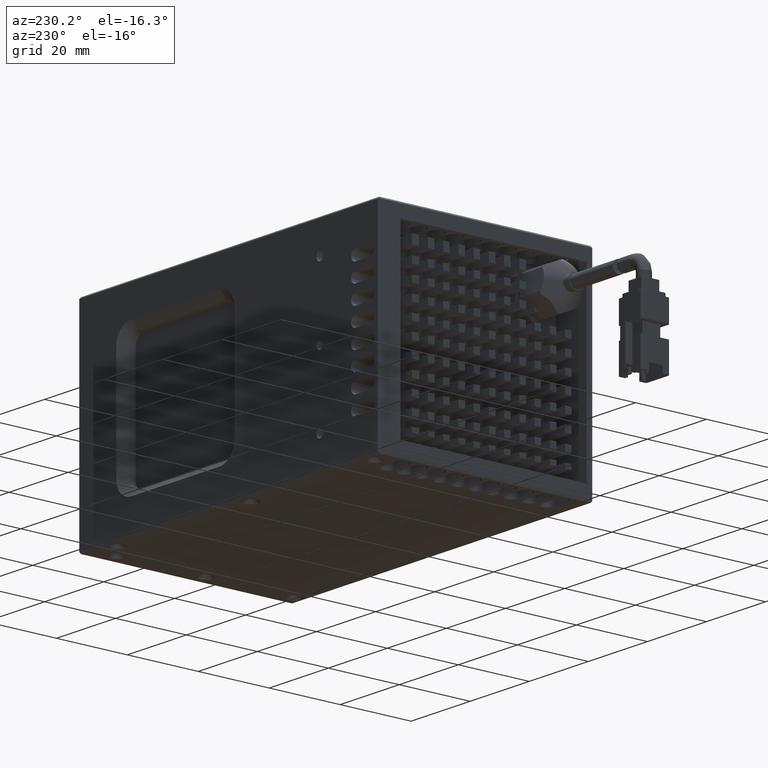
[diagram: clean part render]
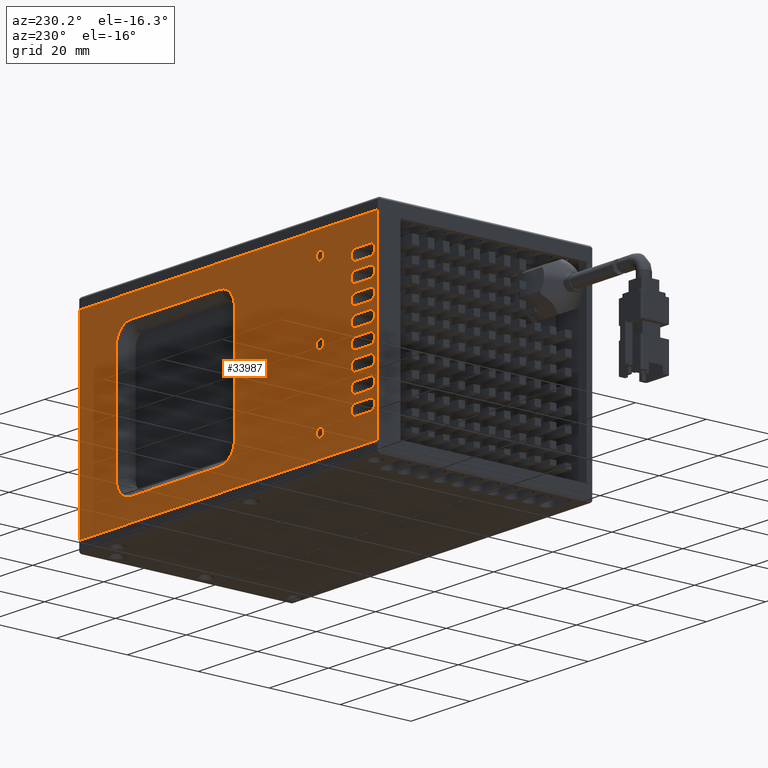
[diagram: same view with one face highlighted and labeled with its STEP entity id]
A machine part, auxiliary view. The second image highlights one B-rep face of the part: STEP entity #33987.
In plain terms, the highlighted planar face has unit normal (-0, 1, -0).
Its self-contained STEP definition (entity closure, byte-faithful):
#105 = CARTESIAN_POINT ( 'NONE',  ( -60.57424922391149400, 52.77699333090260600, 28.00000000000952500 ) ) ;
#243 = FACE_BOUND ( 'NONE', #42780, .T. ) ;
#595 = AXIS2_PLACEMENT_3D ( 'NONE', #66644, #34923, #3165 ) ;
#991 = CARTESIAN_POINT ( 'NONE',  ( 33.42575077608848500, 52.77699333090263400, 33.00000000000955700 ) ) ;
#1183 = VECTOR ( 'NONE', #54573, 1000.000000000000000 ) ;
#1205 = CIRCLE ( 'NONE', #60375, 1.250000000000001100 ) ;
#1409 = EDGE_LOOP ( 'NONE', ( #49536, #67572, #17032, #20960 ) ) ;
#1542 = CARTESIAN_POINT ( 'NONE',  ( 33.42575077608847800, 52.77699333090263400, 55.00000000000956400 ) ) ;
#1860 = AXIS2_PLACEMENT_3D ( 'NONE', #20312, #57369, #25615 ) ;
#1905 = ORIENTED_EDGE ( 'NONE', *, *, #30020, .T. ) ;
#2249 = VERTEX_POINT ( 'NONE', #2453 ) ;
#2427 = EDGE_CURVE ( 'NONE', #13977, #49899, #11357, .T. ) ;
#2453 = CARTESIAN_POINT ( 'NONE',  ( -59.07424922391148000, 52.77699333090260600, 31.50000000000952100 ) ) ;
#2514 = DIRECTION ( 'NONE',  ( 3.435095992033281500E-016, -1.000000000000000000, 2.465190328815661900E-032 ) ) ;
#2870 = DIRECTION ( 'NONE',  ( 1.000000000000000000, 0.0000000000000000000, 0.0000000000000000000 ) ) ;
#3034 = CARTESIAN_POINT ( 'NONE',  ( -65.57424922391150800, 52.77699333090259900, 23.00000000000952100 ) ) ;
#3047 = ORIENTED_EDGE ( 'NONE', *, *, #67195, .T. ) ;
#3165 = DIRECTION ( 'NONE',  ( 1.000000000000000000, 0.0000000000000000000, 0.0000000000000000000 ) ) ;
#3201 = DIRECTION ( 'NONE',  ( 1.000000000000000000, 0.0000000000000000000, 0.0000000000000000000 ) ) ;
#3255 = DIRECTION ( 'NONE',  ( 1.000000000000000000, 0.0000000000000000000, 0.0000000000000000000 ) ) ;
#3263 = ORIENTED_EDGE ( 'NONE', *, *, #35941, .T. ) ;
#3293 = DIRECTION ( 'NONE',  ( 3.435095992033281500E-016, -1.000000000000000000, 2.465190328815661900E-032 ) ) ;
#3581 = DIRECTION ( 'NONE',  ( 3.435095992033281500E-016, -1.000000000000000000, 2.465190328815661900E-032 ) ) ;
#3697 = CARTESIAN_POINT ( 'NONE',  ( -65.57424922391150800, 52.77699333090259900, 10.00000000000950900 ) ) ;
#3776 = ORIENTED_EDGE ( 'NONE', *, *, #59220, .T. ) ;
#3928 = VECTOR ( 'NONE', #47336, 1000.000000000000000 ) ;
#3972 = CARTESIAN_POINT ( 'NONE',  ( -60.57424922391149400, 52.77699333090260600, 18.00000000000952100 ) ) ;
#4051 = ORIENTED_EDGE ( 'NONE', *, *, #39392, .T. ) ;
#4683 = CARTESIAN_POINT ( 'NONE',  ( -49.82424922391150100, 52.77699333090260600, 49.00000000000952800 ) ) ;
#4720 = CARTESIAN_POINT ( 'NONE',  ( 20.42575077610281300, 52.77699333091695200, 14.00000000000957500 ) ) ;
#4824 = DIRECTION ( 'NONE',  ( 1.000000000000000000, 0.0000000000000000000, 0.0000000000000000000 ) ) ;
#5147 = DIRECTION ( 'NONE',  ( 1.000000000000000000, 3.435095992033281500E-016, 3.435095992033281500E-016 ) ) ;
#5177 = CIRCLE ( 'NONE', #50483, 1.500000000000015100 ) ;
#5285 = DIRECTION ( 'NONE',  ( 1.000000000000000000, 0.0000000000000000000, 0.0000000000000000000 ) ) ;
#5357 = CARTESIAN_POINT ( 'NONE',  ( -59.07424922391148000, 52.77699333090260600, 11.50000000000950900 ) ) ;
#5515 = EDGE_CURVE ( 'NONE', #17069, #45733, #49355, .T. ) ;
#5654 = EDGE_CURVE ( 'NONE', #29653, #53619, #1205, .T. ) ;
#5808 = LINE ( 'NONE', #31713, #33956 ) ;
#6179 = EDGE_CURVE ( 'NONE', #62976, #61128, #35846, .T. ) ;
#6235 = CARTESIAN_POINT ( 'NONE',  ( -48.57424922391150100, 52.77699333090260600, 29.00000000000952500 ) ) ;
#6411 = EDGE_LOOP ( 'NONE', ( #62473, #64328, #49758, #58919, #57609, #45622, #13969, #6834 ) ) ;
#6658 = DIRECTION ( 'NONE',  ( 3.435095992033281500E-016, -1.000000000000000000, 2.465190328815661900E-032 ) ) ;
#6680 = EDGE_CURVE ( 'NONE', #14652, #22328, #40804, .T. ) ;
#6834 = ORIENTED_EDGE ( 'NONE', *, *, #41227, .T. ) ;
#6887 = VERTEX_POINT ( 'NONE', #5357 ) ;
#7090 = CARTESIAN_POINT ( 'NONE',  ( -65.57424922391150800, 52.77699333090259900, 25.00000000000950000 ) ) ;
#7111 = VERTEX_POINT ( 'NONE', #34470 ) ;
#7150 = EDGE_CURVE ( 'NONE', #51911, #13977, #33152, .T. ) ;
#7195 = DIRECTION ( 'NONE',  ( 3.435095992033281500E-016, -1.000000000000000000, 2.465190328815661900E-032 ) ) ;
#7206 = ORIENTED_EDGE ( 'NONE', *, *, #39862, .T. ) ;
#7431 = EDGE_CURVE ( 'NONE', #25349, #41941, #66149, .T. ) ;
#7501 = CIRCLE ( 'NONE', #26940, 1.500000000000015100 ) ;
#7579 = EDGE_CURVE ( 'NONE', #46853, #26463, #24670, .T. ) ;
#7589 = CARTESIAN_POINT ( 'NONE',  ( -65.57424922391152200, 52.77699333090259900, 43.00000000000951400 ) ) ;
#7680 = VECTOR ( 'NONE', #28025, 1000.000000000000000 ) ;
#7751 = VECTOR ( 'NONE', #24280, 1000.000000000000000 ) ;
#7929 = CARTESIAN_POINT ( 'NONE',  ( 33.42575077608849200, 52.77699333090263400, 3.000000000009543500 ) ) ;
#8077 = CARTESIAN_POINT ( 'NONE',  ( 20.42575077608849900, 52.77699333090263400, 3.000000000009536800 ) ) ;
#8279 = AXIS2_PLACEMENT_3D ( 'NONE', #11241, #48339, #16544 ) ;
#8302 = DIRECTION ( 'NONE',  ( -3.435095992033281500E-016, -9.334694145667452600E-032, 1.000000000000000000 ) ) ;
#8683 = CARTESIAN_POINT ( 'NONE',  ( -60.57424922391150800, 52.77699333090260600, 46.50000000000952100 ) ) ;
#8742 = VERTEX_POINT ( 'NONE', #62972 ) ;
#8788 = CARTESIAN_POINT ( 'NONE',  ( -14.57424922391150400, 52.77699333093126900, 14.00000000000956000 ) ) ;
#8958 = VECTOR ( 'NONE', #8302, 1000.000000000000000 ) ;
#9000 = EDGE_LOOP ( 'NONE', ( #67646, #3776 ) ) ;
#9222 = CIRCLE ( 'NONE', #41988, 1.500000000000015100 ) ;
#9428 = CARTESIAN_POINT ( 'NONE',  ( -65.57424922391152200, 52.77699333090259900, 41.50000000000951400 ) ) ;
#9696 = EDGE_CURVE ( 'NONE', #39662, #51377, #35770, .T. ) ;
#9927 = CARTESIAN_POINT ( 'NONE',  ( 33.42575077608848500, 52.77699333090263400, 35.00000000000954300 ) ) ;
#10131 = CIRCLE ( 'NONE', #13921, 5.000000000023187700 ) ;
#10308 = LINE ( 'NONE', #37932, #11977 ) ;
#10588 = VERTEX_POINT ( 'NONE', #58787 ) ;
#10721 = DIRECTION ( 'NONE',  ( -1.000000000000000000, -3.435095992033281500E-016, -3.435095992033281500E-016 ) ) ;
#10747 = EDGE_CURVE ( 'NONE', #39049, #36580, #53901, .T. ) ;
#10754 = CARTESIAN_POINT ( 'NONE',  ( -60.57424922391149400, 52.77699333090260600, 33.00000000000952100 ) ) ;
#10757 = LINE ( 'NONE', #9927, #65481 ) ;
#10778 = VERTEX_POINT ( 'NONE', #28401 ) ;
#10855 = CARTESIAN_POINT ( 'NONE',  ( -60.57424922391150800, 52.77699333090260600, 36.50000000000952100 ) ) ;
#10974 = VERTEX_POINT ( 'NONE', #57085 ) ;
#10993 = FACE_BOUND ( 'NONE', #15210, .T. ) ;
#11054 = VERTEX_POINT ( 'NONE', #31107 ) ;
#11118 = CARTESIAN_POINT ( 'NONE',  ( -60.57424922391149400, 52.77699333090260600, 30.00000000000950400 ) ) ;
#11140 = LINE ( 'NONE', #991, #65833 ) ;
#11241 = CARTESIAN_POINT ( 'NONE',  ( -60.57424922391149400, 52.77699333090260600, 26.50000000000951400 ) ) ;
#11318 = DIRECTION ( 'NONE',  ( 3.435095992033281500E-016, -1.000000000000000000, 2.465190328815661900E-032 ) ) ;
#11357 = LINE ( 'NONE', #35369, #66063 ) ;
#11492 = DIRECTION ( 'NONE',  ( 1.000000000000000000, 0.0000000000000000000, 0.0000000000000000000 ) ) ;
#11912 = VECTOR ( 'NONE', #19668, 1000.000000000000000 ) ;
#11977 = VECTOR ( 'NONE', #53885, 1000.000000000000000 ) ;
#12348 = AXIS2_PLACEMENT_3D ( 'NONE', #8683, #45764, #13989 ) ;
#12356 = VERTEX_POINT ( 'NONE', #34469 ) ;
#12369 = VECTOR ( 'NONE', #55182, 1000.000000000000000 ) ;
#12430 = CARTESIAN_POINT ( 'NONE',  ( 33.42575077608849200, 52.77699333090263400, 3.000000000009543500 ) ) ;
#12525 = VERTEX_POINT ( 'NONE', #52031 ) ;
#12645 = VERTEX_POINT ( 'NONE', #105 ) ;
#12670 = FACE_OUTER_BOUND ( 'NONE', #1409, .T. ) ;
#12703 = CARTESIAN_POINT ( 'NONE',  ( -65.57424922391152200, 52.77699333090259900, 38.00000000000952800 ) ) ;
#12954 = CARTESIAN_POINT ( 'NONE',  ( -65.57424922391152200, 52.77699333090259900, 35.00000000000950700 ) ) ;
#13077 = ORIENTED_EDGE ( 'NONE', *, *, #59780, .T. ) ;
#13226 = DIRECTION ( 'NONE',  ( 1.000000000000000000, 3.435095992033281500E-016, 3.435095992033281500E-016 ) ) ;
#13597 = CARTESIAN_POINT ( 'NONE',  ( -14.57424922391150400, 52.77699333091693700, 8.999999999995219800 ) ) ;
#13626 = CARTESIAN_POINT ( 'NONE',  ( -65.57424922391150800, 52.77699333090259900, 33.00000000000952100 ) ) ;
#13786 = AXIS2_PLACEMENT_3D ( 'NONE', #45646, #13855, #50897 ) ;
#13855 = DIRECTION ( 'NONE',  ( 3.435095992033281500E-016, -1.000000000000000000, 2.465190328815661900E-032 ) ) ;
#13921 = AXIS2_PLACEMENT_3D ( 'NONE', #35341, #3581, #40683 ) ;
#13969 = ORIENTED_EDGE ( 'NONE', *, *, #43156, .T. ) ;
#13977 = VERTEX_POINT ( 'NONE', #7090 ) ;
#13989 = DIRECTION ( 'NONE',  ( 1.000000000000000000, 0.0000000000000000000, 0.0000000000000000000 ) ) ;
#14028 = CARTESIAN_POINT ( 'NONE',  ( -60.57424922391149400, 52.77699333090260600, 31.50000000000952100 ) ) ;
#14032 = CIRCLE ( 'NONE', #8279, 1.500000000000015100 ) ;
#14097 = DIRECTION ( 'NONE',  ( 1.000000000000000000, 0.0000000000000000000, 1.387778780783214500E-015 ) ) ;
#14105 = ORIENTED_EDGE ( 'NONE', *, *, #25617, .T. ) ;
#14293 = EDGE_CURVE ( 'NONE', #51377, #21510, #10757, .T. ) ;
#14335 = FACE_BOUND ( 'NONE', #24935, .T. ) ;
#14417 = VERTEX_POINT ( 'NONE', #27758 ) ;
#14643 = VERTEX_POINT ( 'NONE', #13597 ) ;
#14652 = VERTEX_POINT ( 'NONE', #50650 ) ;
#14732 = DIRECTION ( 'NONE',  ( 1.000000000000000000, 0.0000000000000000000, 0.0000000000000000000 ) ) ;
#15210 = EDGE_LOOP ( 'NONE', ( #57290, #68465 ) ) ;
#15226 = LINE ( 'NONE', #35579, #29322 ) ;
#15307 = AXIS2_PLACEMENT_3D ( 'NONE', #20076, #57134, #25402 ) ;
#15399 = CARTESIAN_POINT ( 'NONE',  ( -19.57424922386819000, 52.77699333088146700, 14.00000000000955300 ) ) ;
#15513 = AXIS2_PLACEMENT_3D ( 'NONE', #56259, #24513, #61616 ) ;
#15639 = AXIS2_PLACEMENT_3D ( 'NONE', #66741, #35028, #3255 ) ;
#15879 = CARTESIAN_POINT ( 'NONE',  ( -59.07424922391149400, 52.77699333090260600, 36.50000000000952100 ) ) ;
#15960 = CARTESIAN_POINT ( 'NONE',  ( -60.57424922391149400, 52.77699333090260600, 15.00000000000949800 ) ) ;
#16101 = ORIENTED_EDGE ( 'NONE', *, *, #60577, .T. ) ;
#16175 = DIRECTION ( 'NONE',  ( 1.000000000000000000, 0.0000000000000000000, 0.0000000000000000000 ) ) ;
#16451 = VERTEX_POINT ( 'NONE', #15879 ) ;
#16544 = DIRECTION ( 'NONE',  ( 1.000000000000000000, 0.0000000000000000000, 0.0000000000000000000 ) ) ;
#16779 = ORIENTED_EDGE ( 'NONE', *, *, #46502, .T. ) ;
#16785 = DIRECTION ( 'NONE',  ( 3.435095992033281500E-016, -1.000000000000000000, 2.465190328815661900E-032 ) ) ;
#16791 = CARTESIAN_POINT ( 'NONE',  ( -48.57424922391148700, 52.77699333090260600, 9.000000000009528400 ) ) ;
#16972 = DIRECTION ( 'NONE',  ( -1.000000000000000000, -3.435095992033281500E-016, -3.435095992033281500E-016 ) ) ;
#17032 = ORIENTED_EDGE ( 'NONE', *, *, #10747, .T. ) ;
#17069 = VERTEX_POINT ( 'NONE', #50213 ) ;
#17087 = CARTESIAN_POINT ( 'NONE',  ( -65.57424922391150800, 52.77699333090259900, 20.00000000000950400 ) ) ;
#17450 = DIRECTION ( 'NONE',  ( 3.435095992033281500E-016, -1.000000000000000000, 2.465190328815661900E-032 ) ) ;
#17483 = EDGE_CURVE ( 'NONE', #26463, #17069, #43342, .T. ) ;
#17884 = CIRCLE ( 'NONE', #1860, 5.000000000023187700 ) ;
#17997 = EDGE_CURVE ( 'NONE', #33615, #40882, #58861, .T. ) ;
#18037 = CARTESIAN_POINT ( 'NONE',  ( 33.42575077608849200, 52.77699333090263400, 9.000000000009556800 ) ) ;
#18039 = VERTEX_POINT ( 'NONE', #60985 ) ;
#18841 = CIRCLE ( 'NONE', #15307, 1.500000000000015100 ) ;
#19306 = VECTOR ( 'NONE', #10721, 1000.000000000000000 ) ;
#19332 = DIRECTION ( 'NONE',  ( 1.000000000000000000, 0.0000000000000000000, 0.0000000000000000000 ) ) ;
#19473 = EDGE_CURVE ( 'NONE', #16451, #42437, #9222, .T. ) ;
#19668 = DIRECTION ( 'NONE',  ( 1.000000000000000000, 3.435095992033281500E-016, 3.435095992033281500E-016 ) ) ;
#19967 = CARTESIAN_POINT ( 'NONE',  ( -68.07424922391149400, 52.77699333090260600, 3.000000000009515900 ) ) ;
#19981 = CARTESIAN_POINT ( 'NONE',  ( -60.57424922391150800, 52.77699333090260600, 45.00000000000950700 ) ) ;
#20076 = CARTESIAN_POINT ( 'NONE',  ( -60.57424922391150800, 52.77699333090260600, 41.50000000000951400 ) ) ;
#20194 = EDGE_CURVE ( 'NONE', #49899, #30148, #14032, .T. ) ;
#20204 = EDGE_CURVE ( 'NONE', #8742, #27727, #67061, .T. ) ;
#20312 = CARTESIAN_POINT ( 'NONE',  ( 15.42575077608848000, 52.77699333093127600, 44.00000000000955000 ) ) ;
#20631 = VERTEX_POINT ( 'NONE', #4720 ) ;
#20706 = EDGE_CURVE ( 'NONE', #23767, #10588, #46233, .T. ) ;
#20726 = AXIS2_PLACEMENT_3D ( 'NONE', #58140, #26386, #63470 ) ;
#20960 = ORIENTED_EDGE ( 'NONE', *, *, #64266, .T. ) ;
#20962 = LINE ( 'NONE', #21162, #19306 ) ;
#21108 = ORIENTED_EDGE ( 'NONE', *, *, #20706, .T. ) ;
#21162 = CARTESIAN_POINT ( 'NONE',  ( 33.42575077608847800, 52.77699333090263400, 48.00000000000955700 ) ) ;
#21247 = VERTEX_POINT ( 'NONE', #35910 ) ;
#21469 = AXIS2_PLACEMENT_3D ( 'NONE', #55031, #23308, #60367 ) ;
#21510 = VERTEX_POINT ( 'NONE', #54386 ) ;
#21833 = LINE ( 'NONE', #56018, #7751 ) ;
#21857 = VERTEX_POINT ( 'NONE', #15399 ) ;
#21889 = CARTESIAN_POINT ( 'NONE',  ( -60.57424922391150800, 52.77699333090260600, 41.50000000000951400 ) ) ;
#22074 = DIRECTION ( 'NONE',  ( -1.000000000000000000, -3.435095992033281500E-016, -3.435095992033281500E-016 ) ) ;
#22139 = DIRECTION ( 'NONE',  ( 1.000000000000000000, 0.0000000000000000000, 0.0000000000000000000 ) ) ;
#22223 = ORIENTED_EDGE ( 'NONE', *, *, #6680, .T. ) ;
#22241 = CIRCLE ( 'NONE', #41868, 1.500000000000015100 ) ;
#22328 = VERTEX_POINT ( 'NONE', #37630 ) ;
#22335 = DIRECTION ( 'NONE',  ( 3.435095992033281500E-016, -1.000000000000000000, 2.465190328815661900E-032 ) ) ;
#22507 = ORIENTED_EDGE ( 'NONE', *, *, #2427, .T. ) ;
#22511 = CARTESIAN_POINT ( 'NONE',  ( -65.57424922391152200, 52.77699333090259900, 40.00000000000950000 ) ) ;
#23057 = AXIS2_PLACEMENT_3D ( 'NONE', #21889, #58938, #27175 ) ;
#23082 = ORIENTED_EDGE ( 'NONE', *, *, #6179, .T. ) ;
#23176 = AXIS2_PLACEMENT_3D ( 'NONE', #68236, #36541, #4824 ) ;
#23237 = ORIENTED_EDGE ( 'NONE', *, *, #5515, .T. ) ;
#23259 = CARTESIAN_POINT ( 'NONE',  ( 33.42575077608848500, 52.77699333090263400, 20.00000000000953900 ) ) ;
#23275 = EDGE_CURVE ( 'NONE', #65362, #62092, #43498, .T. ) ;
#23308 = DIRECTION ( 'NONE',  ( 3.435095992033281500E-016, -1.000000000000000000, 2.465190328815661900E-032 ) ) ;
#23317 = EDGE_CURVE ( 'NONE', #40882, #14417, #50880, .T. ) ;
#23381 = DIRECTION ( 'NONE',  ( 1.000000000000000000, 3.435095992033281500E-016, 3.435095992033281500E-016 ) ) ;
#23643 = PLANE ( 'NONE',  #43860 ) ;
#23767 = VERTEX_POINT ( 'NONE', #48990 ) ;
#23930 = CIRCLE ( 'NONE', #37901, 1.250000000000001100 ) ;
#24280 = DIRECTION ( 'NONE',  ( -1.000000000000000000, -3.435095992033281500E-016, -3.435095992033281500E-016 ) ) ;
#24288 = EDGE_LOOP ( 'NONE', ( #41418, #22223 ) ) ;
#24385 = ORIENTED_EDGE ( 'NONE', *, *, #66728, .T. ) ;
#24420 = CARTESIAN_POINT ( 'NONE',  ( -65.57424922391152200, 52.77699333090259900, 45.00000000000950700 ) ) ;
#24513 = DIRECTION ( 'NONE',  ( 3.435095992033281500E-016, -1.000000000000000000, 2.465190328815661900E-032 ) ) ;
#24532 = CARTESIAN_POINT ( 'NONE',  ( 33.42575077608849200, 52.77699333090263400, 10.00000000000954300 ) ) ;
#24670 = LINE ( 'NONE', #23259, #61996 ) ;
#24693 = CARTESIAN_POINT ( 'NONE',  ( 33.42575077608849200, 52.77699333090263400, 18.00000000000955700 ) ) ;
#24811 = VERTEX_POINT ( 'NONE', #43793 ) ;
#24888 = AXIS2_PLACEMENT_3D ( 'NONE', #38354, #6658, #43705 ) ;
#24935 = EDGE_LOOP ( 'NONE', ( #38329, #40800, #60754, #41538, #64616 ) ) ;
#25021 = ORIENTED_EDGE ( 'NONE', *, *, #39099, .T. ) ;
#25091 = FACE_BOUND ( 'NONE', #24288, .T. ) ;
#25268 = CARTESIAN_POINT ( 'NONE',  ( -14.57424922391151900, 52.77699333092410000, 49.00000000000238000 ) ) ;
#25349 = VERTEX_POINT ( 'NONE', #53850 ) ;
#25402 = DIRECTION ( 'NONE',  ( 1.000000000000000000, 0.0000000000000000000, 0.0000000000000000000 ) ) ;
#25478 = AXIS2_PLACEMENT_3D ( 'NONE', #43099, #11318, #48428 ) ;
#25609 = AXIS2_PLACEMENT_3D ( 'NONE', #35055, #3293, #40384 ) ;
#25615 = DIRECTION ( 'NONE',  ( 1.000000000000000000, 0.0000000000000000000, 2.775557561550019500E-015 ) ) ;
#25617 = EDGE_CURVE ( 'NONE', #12525, #63759, #32922, .T. ) ;
#25644 = CARTESIAN_POINT ( 'NONE',  ( -68.07424922391148000, 52.77699333090262000, 55.00000000000955000 ) ) ;
#26386 = DIRECTION ( 'NONE',  ( 3.435095992033281500E-016, -1.000000000000000000, 2.465190328815661900E-032 ) ) ;
#26463 = VERTEX_POINT ( 'NONE', #59074 ) ;
#26542 = ORIENTED_EDGE ( 'NONE', *, *, #7431, .T. ) ;
#26693 = CARTESIAN_POINT ( 'NONE',  ( -60.57424922391150800, 52.77699333090260600, 36.50000000000952100 ) ) ;
#26699 = EDGE_CURVE ( 'NONE', #30148, #12645, #39239, .T. ) ;
#26751 = FACE_BOUND ( 'NONE', #53905, .T. ) ;
#26811 = ORIENTED_EDGE ( 'NONE', *, *, #20194, .T. ) ;
#26940 = AXIS2_PLACEMENT_3D ( 'NONE', #54058, #22335, #59414 ) ;
#27175 = DIRECTION ( 'NONE',  ( 1.000000000000000000, 0.0000000000000000000, 0.0000000000000000000 ) ) ;
#27727 = VERTEX_POINT ( 'NONE', #7589 ) ;
#27758 = CARTESIAN_POINT ( 'NONE',  ( -19.57424922392584700, 52.77699333091693700, 44.00000000000952800 ) ) ;
#27839 = EDGE_CURVE ( 'NONE', #62092, #39049, #15226, .T. ) ;
#28025 = DIRECTION ( 'NONE',  ( 1.000000000000000000, 3.435095992033281500E-016, 3.435095992033281500E-016 ) ) ;
#28229 = CARTESIAN_POINT ( 'NONE',  ( -48.57424922391150100, 52.77699333090260600, 29.00000000000952500 ) ) ;
#28401 = CARTESIAN_POINT ( 'NONE',  ( 15.42575077608849400, 52.77699333088148100, 9.000000000013768500 ) ) ;
#28411 = FACE_BOUND ( 'NONE', #33633, .T. ) ;
#28724 = CIRCLE ( 'NONE', #25478, 1.250000000000001100 ) ;
#28978 = DIRECTION ( 'NONE',  ( 3.435095992033281500E-016, -1.000000000000000000, 2.465190328815661900E-032 ) ) ;
#29322 = VECTOR ( 'NONE', #67293, 1000.000000000000000 ) ;
#29428 = CARTESIAN_POINT ( 'NONE',  ( -60.57424922391149400, 52.77699333090260600, 21.50000000000951100 ) ) ;
#29580 = CARTESIAN_POINT ( 'NONE',  ( 32.92575077608848500, 52.77699333090264100, 55.00000000000955700 ) ) ;
#29653 = VERTEX_POINT ( 'NONE', #47384 ) ;
#29806 = DIRECTION ( 'NONE',  ( -1.000000000000000000, -3.435095992033281500E-016, -3.435095992033281500E-016 ) ) ;
#30020 = EDGE_CURVE ( 'NONE', #60201, #7111, #68257, .T. ) ;
#30148 = VERTEX_POINT ( 'NONE', #52145 ) ;
#30675 = CARTESIAN_POINT ( 'NONE',  ( -65.57424922391152200, 52.77699333090259900, 48.00000000000952100 ) ) ;
#31107 = CARTESIAN_POINT ( 'NONE',  ( -47.32424922391148700, 52.77699333090260600, 9.000000000009528400 ) ) ;
#31113 = ORIENTED_EDGE ( 'NONE', *, *, #60705, .T. ) ;
#31174 = AXIS2_PLACEMENT_3D ( 'NONE', #14028, #51073, #19332 ) ;
#31409 = VECTOR ( 'NONE', #5147, 1000.000000000000000 ) ;
#31708 = CARTESIAN_POINT ( 'NONE',  ( 33.42575077608848500, 52.77699333090263400, 30.00000000000953900 ) ) ;
#31713 = CARTESIAN_POINT ( 'NONE',  ( 33.42575077608848500, 52.77699333090263400, 23.00000000000955300 ) ) ;
#32003 = DIRECTION ( 'NONE',  ( 1.000000000000000000, 0.0000000000000000000, 0.0000000000000000000 ) ) ;
#32312 = VECTOR ( 'NONE', #22074, 1000.000000000000000 ) ;
#32692 = VERTEX_POINT ( 'NONE', #3697 ) ;
#32922 = CIRCLE ( 'NONE', #12348, 1.500000000000015100 ) ;
#33152 = CIRCLE ( 'NONE', #595, 1.500000000000015100 ) ;
#33451 = CARTESIAN_POINT ( 'NONE',  ( 32.92575077608850600, 52.77699333090263400, 3.000000000009543500 ) ) ;
#33579 = DIRECTION ( 'NONE',  ( 1.000000000000000000, 0.0000000000000000000, 0.0000000000000000000 ) ) ;
#33615 = VERTEX_POINT ( 'NONE', #66309 ) ;
#33633 = EDGE_LOOP ( 'NONE', ( #47378, #14105, #63288, #64508, #23082 ) ) ;
#33805 = ORIENTED_EDGE ( 'NONE', *, *, #62550, .T. ) ;
#33938 = CIRCLE ( 'NONE', #39206, 1.500000000000015100 ) ;
#33956 = VECTOR ( 'NONE', #37098, 1000.000000000000000 ) ;
#33987 = ADVANCED_FACE ( 'NONE', ( #28411, #40895, #14335, #54941, #243, #26751, #12670, #67371, #53299, #39205, #25091, #10993, #65701 ), #23643, .T. ) ;
#34194 = CARTESIAN_POINT ( 'NONE',  ( -65.57424922391150800, 52.77699333090259900, 15.00000000000950500 ) ) ;
#34287 = CARTESIAN_POINT ( 'NONE',  ( -48.57424922391148700, 52.77699333090260600, 9.000000000009528400 ) ) ;
#34469 = CARTESIAN_POINT ( 'NONE',  ( 20.42575077610279900, 52.77699333091695200, 44.00000000000956400 ) ) ;
#34470 = CARTESIAN_POINT ( 'NONE',  ( -59.07424922391148000, 52.77699333090260600, 16.50000000000951400 ) ) ;
#34509 = ORIENTED_EDGE ( 'NONE', *, *, #38383, .T. ) ;
#34629 = DIRECTION ( 'NONE',  ( 3.435095992033281500E-016, -1.000000000000000000, 2.465190328815661900E-032 ) ) ;
#34680 = CIRCLE ( 'NONE', #48969, 4.999999999993627300 ) ;
#34793 = DIRECTION ( 'NONE',  ( 1.000000000000000000, 0.0000000000000000000, 0.0000000000000000000 ) ) ;
#34923 = DIRECTION ( 'NONE',  ( 3.435095992033281500E-016, -1.000000000000000000, 2.465190328815661900E-032 ) ) ;
#34968 = DIRECTION ( 'NONE',  ( 3.435095992033281500E-016, -1.000000000000000000, 2.465190328815661900E-032 ) ) ;
#35028 = DIRECTION ( 'NONE',  ( 3.435095992033281500E-016, -1.000000000000000000, 2.465190328815661900E-032 ) ) ;
#35055 = CARTESIAN_POINT ( 'NONE',  ( -60.57424922391149400, 52.77699333090260600, 16.50000000000951400 ) ) ;
#35341 = CARTESIAN_POINT ( 'NONE',  ( 15.42575077608849000, 52.77699333093127600, 14.00000000000957500 ) ) ;
#35369 = CARTESIAN_POINT ( 'NONE',  ( 33.42575077608848500, 52.77699333090263400, 25.00000000000953500 ) ) ;
#35571 = AXIS2_PLACEMENT_3D ( 'NONE', #28229, #65288, #33579 ) ;
#35579 = CARTESIAN_POINT ( 'NONE',  ( 32.92575077608850600, 52.77699333090263400, 3.000000000009543500 ) ) ;
#35770 = CIRCLE ( 'NONE', #15513, 1.500000000000015100 ) ;
#35846 = LINE ( 'NONE', #43612, #7680 ) ;
#35910 = CARTESIAN_POINT ( 'NONE',  ( -49.82424922391148700, 52.77699333090260600, 9.000000000009528400 ) ) ;
#35941 = EDGE_CURVE ( 'NONE', #37809, #25349, #38062, .T. ) ;
#36195 = VERTEX_POINT ( 'NONE', #10754 ) ;
#36541 = DIRECTION ( 'NONE',  ( 3.435095992033281500E-016, -1.000000000000000000, 2.465190328815661900E-032 ) ) ;
#36580 = VERTEX_POINT ( 'NONE', #19967 ) ;
#36824 = DIRECTION ( 'NONE',  ( 1.000000000000000000, 3.435095992033281500E-016, 3.435095992033281500E-016 ) ) ;
#36983 = DIRECTION ( 'NONE',  ( 3.435095992033281500E-016, -1.000000000000000000, 2.465190328815661900E-032 ) ) ;
#37032 = AXIS2_PLACEMENT_3D ( 'NONE', #48566, #16785, #53838 ) ;
#37098 = DIRECTION ( 'NONE',  ( -1.000000000000000000, -3.435095992033281500E-016, -3.435095992033281500E-016 ) ) ;
#37144 = EDGE_CURVE ( 'NONE', #48514, #2249, #38468, .T. ) ;
#37341 = EDGE_CURVE ( 'NONE', #63759, #60652, #20962, .T. ) ;
#37630 = CARTESIAN_POINT ( 'NONE',  ( -47.32424922391150100, 52.77699333090260600, 29.00000000000952500 ) ) ;
#37681 = DIRECTION ( 'NONE',  ( -1.000000000000000000, -3.435095992033281500E-016, -3.435095992033281500E-016 ) ) ;
#37809 = VERTEX_POINT ( 'NONE', #3972 ) ;
#37901 = AXIS2_PLACEMENT_3D ( 'NONE', #34287, #2514, #39609 ) ;
#37932 = CARTESIAN_POINT ( 'NONE',  ( -68.07424922391146500, 52.77699333090259900, 3.000000000009508800 ) ) ;
#38062 = LINE ( 'NONE', #24693, #66218 ) ;
#38267 = EDGE_CURVE ( 'NONE', #42437, #39662, #21833, .T. ) ;
#38269 = VERTEX_POINT ( 'NONE', #13626 ) ;
#38329 = ORIENTED_EDGE ( 'NONE', *, *, #63199, .T. ) ;
#38354 = CARTESIAN_POINT ( 'NONE',  ( -60.57424922391149400, 52.77699333090260600, 21.50000000000951100 ) ) ;
#38383 = EDGE_CURVE ( 'NONE', #12645, #51911, #56562, .T. ) ;
#38468 = CIRCLE ( 'NONE', #31174, 1.500000000000015100 ) ;
#38536 = VERTEX_POINT ( 'NONE', #59235 ) ;
#38781 = CARTESIAN_POINT ( 'NONE',  ( -60.57424922391149400, 52.77699333090260600, 23.00000000000952100 ) ) ;
#38881 = CARTESIAN_POINT ( 'NONE',  ( -60.57424922391149400, 52.77699333090260600, 11.50000000000950900 ) ) ;
#38882 = VECTOR ( 'NONE', #37681, 1000.000000000000000 ) ;
#38990 = EDGE_CURVE ( 'NONE', #60652, #62976, #7501, .T. ) ;
#39049 = VERTEX_POINT ( 'NONE', #33451 ) ;
#39099 = EDGE_CURVE ( 'NONE', #46297, #24811, #68737, .T. ) ;
#39177 = ORIENTED_EDGE ( 'NONE', *, *, #43089, .T. ) ;
#39205 = FACE_BOUND ( 'NONE', #56575, .T. ) ;
#39206 = AXIS2_PLACEMENT_3D ( 'NONE', #26693, #63768, #32003 ) ;
#39239 = CIRCLE ( 'NONE', #13786, 1.500000000000015100 ) ;
#39392 = EDGE_CURVE ( 'NONE', #45733, #44179, #5808, .T. ) ;
#39505 = ORIENTED_EDGE ( 'NONE', *, *, #65962, .T. ) ;
#39609 = DIRECTION ( 'NONE',  ( 1.000000000000000000, 0.0000000000000000000, 0.0000000000000000000 ) ) ;
#39662 = VERTEX_POINT ( 'NONE', #12703 ) ;
#39862 = EDGE_CURVE ( 'NONE', #24811, #18039, #18841, .T. ) ;
#40152 = ORIENTED_EDGE ( 'NONE', *, *, #26699, .T. ) ;
#40384 = DIRECTION ( 'NONE',  ( 1.000000000000000000, 0.0000000000000000000, 0.0000000000000000000 ) ) ;
#40683 = DIRECTION ( 'NONE',  ( 1.000000000000000000, 0.0000000000000000000, 2.081668171162514800E-015 ) ) ;
#40800 = ORIENTED_EDGE ( 'NONE', *, *, #19473, .T. ) ;
#40804 = CIRCLE ( 'NONE', #46290, 1.250000000000001100 ) ;
#40882 = VERTEX_POINT ( 'NONE', #25268 ) ;
#40895 = FACE_BOUND ( 'NONE', #54841, .T. ) ;
#41227 = EDGE_CURVE ( 'NONE', #14643, #10778, #44323, .T. ) ;
#41418 = ORIENTED_EDGE ( 'NONE', *, *, #61926, .T. ) ;
#41441 = DIRECTION ( 'NONE',  ( -1.000000000000000000, -3.435095992033281500E-016, -3.435095992033281500E-016 ) ) ;
#41538 = ORIENTED_EDGE ( 'NONE', *, *, #9696, .T. ) ;
#41620 = CIRCLE ( 'NONE', #59424, 1.500000000000015100 ) ;
#41868 = AXIS2_PLACEMENT_3D ( 'NONE', #66679, #34968, #3201 ) ;
#41941 = VERTEX_POINT ( 'NONE', #34194 ) ;
#41988 = AXIS2_PLACEMENT_3D ( 'NONE', #10855, #47961, #16175 ) ;
#42437 = VERTEX_POINT ( 'NONE', #53566 ) ;
#42522 = VECTOR ( 'NONE', #41441, 1000.000000000000000 ) ;
#42648 = VECTOR ( 'NONE', #23381, 1000.000000000000000 ) ;
#42780 = EDGE_LOOP ( 'NONE', ( #26811, #40152, #34509, #46594, #22507 ) ) ;
#42795 = EDGE_CURVE ( 'NONE', #38536, #48514, #61344, .T. ) ;
#42868 = CARTESIAN_POINT ( 'NONE',  ( -60.57424922391150800, 52.77699333090260600, 48.00000000000952800 ) ) ;
#42981 = CIRCLE ( 'NONE', #35571, 1.250000000000001100 ) ;
#43022 = CARTESIAN_POINT ( 'NONE',  ( 33.42575077608847800, 52.77699333090263400, 43.00000000000955000 ) ) ;
#43089 = EDGE_CURVE ( 'NONE', #44179, #46853, #22241, .T. ) ;
#43099 = CARTESIAN_POINT ( 'NONE',  ( -48.57424922391150100, 52.77699333090260600, 49.00000000000952800 ) ) ;
#43156 = EDGE_CURVE ( 'NONE', #21857, #14643, #34680, .T. ) ;
#43285 = DIRECTION ( 'NONE',  ( 3.435095992033281500E-016, -1.000000000000000000, 2.465190328815661900E-032 ) ) ;
#43342 = CIRCLE ( 'NONE', #24888, 1.500000000000015100 ) ;
#43385 = CIRCLE ( 'NONE', #47442, 1.500000000000015100 ) ;
#43498 = LINE ( 'NONE', #1542, #1183 ) ;
#43612 = CARTESIAN_POINT ( 'NONE',  ( 33.42575077608847800, 52.77699333090263400, 45.00000000000954300 ) ) ;
#43683 = EDGE_CURVE ( 'NONE', #10778, #20631, #10131, .T. ) ;
#43684 = CIRCLE ( 'NONE', #51661, 1.250000000000001100 ) ;
#43705 = DIRECTION ( 'NONE',  ( 1.000000000000000000, 0.0000000000000000000, 0.0000000000000000000 ) ) ;
#43793 = CARTESIAN_POINT ( 'NONE',  ( -60.57424922391150800, 52.77699333090260600, 40.00000000000950000 ) ) ;
#43860 = AXIS2_PLACEMENT_3D ( 'NONE', #7929, #44999, #13226 ) ;
#44179 = VERTEX_POINT ( 'NONE', #3034 ) ;
#44249 = DIRECTION ( 'NONE',  ( 1.000000000000000000, 0.0000000000000000000, 0.0000000000000000000 ) ) ;
#44323 = LINE ( 'NONE', #18037, #42648 ) ;
#44330 = AXIS2_PLACEMENT_3D ( 'NONE', #38881, #7195, #44249 ) ;
#44796 = CARTESIAN_POINT ( 'NONE',  ( 33.42575077608847800, 52.77699333090263400, 49.00000000000956400 ) ) ;
#44999 = DIRECTION ( 'NONE',  ( -3.435095992033281500E-016, 1.000000000000000000, -2.465190328815661900E-032 ) ) ;
#45101 = CIRCLE ( 'NONE', #20726, 1.500000000000015100 ) ;
#45622 = ORIENTED_EDGE ( 'NONE', *, *, #57280, .T. ) ;
#45646 = CARTESIAN_POINT ( 'NONE',  ( -60.57424922391149400, 52.77699333090260600, 26.50000000000951400 ) ) ;
#45733 = VERTEX_POINT ( 'NONE', #38781 ) ;
#45764 = DIRECTION ( 'NONE',  ( 3.435095992033281500E-016, -1.000000000000000000, 2.465190328815661900E-032 ) ) ;
#45868 = DIRECTION ( 'NONE',  ( 3.435095992033281500E-016, -1.000000000000000000, 2.465190328815661900E-032 ) ) ;
#46233 = LINE ( 'NONE', #52635, #3928 ) ;
#46290 = AXIS2_PLACEMENT_3D ( 'NONE', #6235, #43285, #11492 ) ;
#46297 = VERTEX_POINT ( 'NONE', #22511 ) ;
#46502 = EDGE_CURVE ( 'NONE', #32692, #10974, #60969, .T. ) ;
#46521 = DIRECTION ( 'NONE',  ( 3.435095992033281500E-016, -1.000000000000000000, 2.465190328815661900E-032 ) ) ;
#46543 = CARTESIAN_POINT ( 'NONE',  ( 33.42575077608848500, 52.77699333090263400, 28.00000000000955700 ) ) ;
#46594 = ORIENTED_EDGE ( 'NONE', *, *, #7150, .T. ) ;
#46853 = VERTEX_POINT ( 'NONE', #17087 ) ;
#47336 = DIRECTION ( 'NONE',  ( -1.000000000000000000, -3.435095992033281500E-016, -3.435095992033281500E-016 ) ) ;
#47378 = ORIENTED_EDGE ( 'NONE', *, *, #68388, .T. ) ;
#47384 = CARTESIAN_POINT ( 'NONE',  ( -47.32424922391150100, 52.77699333090260600, 49.00000000000952800 ) ) ;
#47442 = AXIS2_PLACEMENT_3D ( 'NONE', #68692, #36983, #5285 ) ;
#47961 = DIRECTION ( 'NONE',  ( 3.435095992033281500E-016, -1.000000000000000000, 2.465190328815661900E-032 ) ) ;
#48339 = DIRECTION ( 'NONE',  ( 3.435095992033281500E-016, -1.000000000000000000, 2.465190328815661900E-032 ) ) ;
#48380 = VECTOR ( 'NONE', #55286, 1000.000000000000000 ) ;
#48428 = DIRECTION ( 'NONE',  ( 1.000000000000000000, 0.0000000000000000000, 0.0000000000000000000 ) ) ;
#48514 = VERTEX_POINT ( 'NONE', #11118 ) ;
#48566 = CARTESIAN_POINT ( 'NONE',  ( -65.57424922391150800, 52.77699333090259900, 16.50000000000951400 ) ) ;
#48969 = AXIS2_PLACEMENT_3D ( 'NONE', #8788, #45868, #14097 ) ;
#48990 = CARTESIAN_POINT ( 'NONE',  ( -60.57424922391149400, 52.77699333090260600, 13.00000000000952500 ) ) ;
#49123 = CIRCLE ( 'NONE', #15639, 1.500000000000015100 ) ;
#49222 = CARTESIAN_POINT ( 'NONE',  ( -48.57424922391150100, 52.77699333090260600, 49.00000000000952800 ) ) ;
#49261 = ORIENTED_EDGE ( 'NONE', *, *, #17483, .T. ) ;
#49355 = CIRCLE ( 'NONE', #54581, 1.500000000000015100 ) ;
#49536 = ORIENTED_EDGE ( 'NONE', *, *, #23275, .T. ) ;
#49758 = ORIENTED_EDGE ( 'NONE', *, *, #62534, .T. ) ;
#49873 = CARTESIAN_POINT ( 'NONE',  ( 33.42575077608847800, 52.77699333090263400, 40.00000000000953500 ) ) ;
#49899 = VERTEX_POINT ( 'NONE', #51371 ) ;
#49982 = CIRCLE ( 'NONE', #44330, 1.500000000000015100 ) ;
#50007 = LINE ( 'NONE', #60633, #48380 ) ;
#50213 = CARTESIAN_POINT ( 'NONE',  ( -59.07424922391148000, 52.77699333090260600, 21.50000000000951100 ) ) ;
#50239 = AXIS2_PLACEMENT_3D ( 'NONE', #60739, #28978, #66038 ) ;
#50483 = AXIS2_PLACEMENT_3D ( 'NONE', #66329, #34629, #2870 ) ;
#50650 = CARTESIAN_POINT ( 'NONE',  ( -49.82424922391150100, 52.77699333090260600, 29.00000000000952500 ) ) ;
#50880 = CIRCLE ( 'NONE', #21469, 4.999999999993634400 ) ;
#50897 = DIRECTION ( 'NONE',  ( 1.000000000000000000, 0.0000000000000000000, 0.0000000000000000000 ) ) ;
#51073 = DIRECTION ( 'NONE',  ( 3.435095992033281500E-016, -1.000000000000000000, 2.465190328815661900E-032 ) ) ;
#51197 = ORIENTED_EDGE ( 'NONE', *, *, #60351, .T. ) ;
#51209 = LINE ( 'NONE', #8077, #8958 ) ;
#51371 = CARTESIAN_POINT ( 'NONE',  ( -60.57424922391149400, 52.77699333090260600, 25.00000000000950400 ) ) ;
#51377 = VERTEX_POINT ( 'NONE', #12954 ) ;
#51406 = CARTESIAN_POINT ( 'NONE',  ( 33.42575077608849200, 52.77699333090263400, 15.00000000000954100 ) ) ;
#51661 = AXIS2_PLACEMENT_3D ( 'NONE', #16791, #53846, #22139 ) ;
#51911 = VERTEX_POINT ( 'NONE', #65231 ) ;
#52031 = CARTESIAN_POINT ( 'NONE',  ( -59.07424922391149400, 52.77699333090260600, 46.50000000000952100 ) ) ;
#52145 = CARTESIAN_POINT ( 'NONE',  ( -59.07424922391148000, 52.77699333090260600, 26.50000000000951400 ) ) ;
#52234 = VECTOR ( 'NONE', #59725, 1000.000000000000000 ) ;
#52531 = LINE ( 'NONE', #51406, #11912 ) ;
#52635 = CARTESIAN_POINT ( 'NONE',  ( 33.42575077608849200, 52.77699333090263400, 13.00000000000956000 ) ) ;
#53299 = FACE_BOUND ( 'NONE', #54002, .T. ) ;
#53455 = ORIENTED_EDGE ( 'NONE', *, *, #58251, .T. ) ;
#53566 = CARTESIAN_POINT ( 'NONE',  ( -60.57424922391150800, 52.77699333090260600, 38.00000000000952800 ) ) ;
#53619 = VERTEX_POINT ( 'NONE', #4683 ) ;
#53838 = DIRECTION ( 'NONE',  ( 1.000000000000000000, 0.0000000000000000000, 0.0000000000000000000 ) ) ;
#53846 = DIRECTION ( 'NONE',  ( 3.435095992033281500E-016, -1.000000000000000000, 2.465190328815661900E-032 ) ) ;
#53850 = CARTESIAN_POINT ( 'NONE',  ( -65.57424922391150800, 52.77699333090259900, 18.00000000000952100 ) ) ;
#53885 = DIRECTION ( 'NONE',  ( -3.435095992033281500E-016, -9.334694145667452600E-032, 1.000000000000000000 ) ) ;
#53901 = LINE ( 'NONE', #12430, #52234 ) ;
#53905 = EDGE_LOOP ( 'NONE', ( #49261, #23237, #4051, #39177, #68534 ) ) ;
#53960 = EDGE_CURVE ( 'NONE', #11054, #21247, #23930, .T. ) ;
#54002 = EDGE_LOOP ( 'NONE', ( #51197, #3047, #21108, #53455, #16779 ) ) ;
#54058 = CARTESIAN_POINT ( 'NONE',  ( -65.57424922391152200, 52.77699333090259900, 46.50000000000952100 ) ) ;
#54386 = CARTESIAN_POINT ( 'NONE',  ( -60.57424922391150800, 52.77699333090260600, 35.00000000000950700 ) ) ;
#54461 = CIRCLE ( 'NONE', #23057, 1.500000000000015100 ) ;
#54513 = DIRECTION ( 'NONE',  ( 1.000000000000000000, 0.0000000000000000000, 0.0000000000000000000 ) ) ;
#54573 = DIRECTION ( 'NONE',  ( 1.000000000000000000, 3.435095992033281500E-016, 3.435095992033281500E-016 ) ) ;
#54581 = AXIS2_PLACEMENT_3D ( 'NONE', #29428, #66504, #34793 ) ;
#54841 = EDGE_LOOP ( 'NONE', ( #7206, #39505, #57515, #16101, #25021 ) ) ;
#54941 = FACE_BOUND ( 'NONE', #67471, .T. ) ;
#54980 = DIRECTION ( 'NONE',  ( 1.000000000000000000, 3.435095992033281500E-016, 3.435095992033281500E-016 ) ) ;
#55031 = CARTESIAN_POINT ( 'NONE',  ( -14.57424922391151900, 52.77699333093126900, 44.00000000000952800 ) ) ;
#55182 = DIRECTION ( 'NONE',  ( 1.000000000000000000, 3.435095992033281500E-016, 3.435095992033281500E-016 ) ) ;
#55286 = DIRECTION ( 'NONE',  ( 3.435095992033281500E-016, 9.334694145667452600E-032, -1.000000000000000000 ) ) ;
#56018 = CARTESIAN_POINT ( 'NONE',  ( 33.42575077608848500, 52.77699333090263400, 38.00000000000956400 ) ) ;
#56259 = CARTESIAN_POINT ( 'NONE',  ( -65.57424922391152200, 52.77699333090259900, 36.50000000000951400 ) ) ;
#56280 = DIRECTION ( 'NONE',  ( 1.000000000000000000, 3.435095992033281500E-016, 3.435095992033281500E-016 ) ) ;
#56562 = LINE ( 'NONE', #46543, #42522 ) ;
#56575 = EDGE_LOOP ( 'NONE', ( #1905, #60995, #3263, #26542, #24385 ) ) ;
#56866 = DIRECTION ( 'NONE',  ( 1.000000000000000000, 3.435095992033281500E-016, 3.435095992033281500E-016 ) ) ;
#57085 = CARTESIAN_POINT ( 'NONE',  ( -60.57424922391149400, 52.77699333090260600, 10.00000000000950200 ) ) ;
#57134 = DIRECTION ( 'NONE',  ( 3.435095992033281500E-016, -1.000000000000000000, 2.465190328815661900E-032 ) ) ;
#57280 = EDGE_CURVE ( 'NONE', #14417, #21857, #50007, .T. ) ;
#57290 = ORIENTED_EDGE ( 'NONE', *, *, #5654, .T. ) ;
#57369 = DIRECTION ( 'NONE',  ( 3.435095992033281500E-016, -1.000000000000000000, 2.465190328815661900E-032 ) ) ;
#57515 = ORIENTED_EDGE ( 'NONE', *, *, #20204, .T. ) ;
#57609 = ORIENTED_EDGE ( 'NONE', *, *, #23317, .T. ) ;
#58140 = CARTESIAN_POINT ( 'NONE',  ( -60.57424922391149400, 52.77699333090260600, 16.50000000000951400 ) ) ;
#58251 = EDGE_CURVE ( 'NONE', #10588, #32692, #59757, .T. ) ;
#58787 = CARTESIAN_POINT ( 'NONE',  ( -65.57424922391150800, 52.77699333090259900, 13.00000000000952500 ) ) ;
#58861 = LINE ( 'NONE', #44796, #32312 ) ;
#58869 = EDGE_CURVE ( 'NONE', #20631, #12356, #51209, .T. ) ;
#58919 = ORIENTED_EDGE ( 'NONE', *, *, #17997, .T. ) ;
#58938 = DIRECTION ( 'NONE',  ( 3.435095992033281500E-016, -1.000000000000000000, 2.465190328815661900E-032 ) ) ;
#59074 = CARTESIAN_POINT ( 'NONE',  ( -60.57424922391149400, 52.77699333090260600, 20.00000000000950400 ) ) ;
#59128 = ORIENTED_EDGE ( 'NONE', *, *, #37144, .T. ) ;
#59220 = EDGE_CURVE ( 'NONE', #21247, #11054, #43684, .T. ) ;
#59235 = CARTESIAN_POINT ( 'NONE',  ( -65.57424922391150800, 52.77699333090259900, 30.00000000000950400 ) ) ;
#59321 = VECTOR ( 'NONE', #56280, 1000.000000000000000 ) ;
#59414 = DIRECTION ( 'NONE',  ( 1.000000000000000000, 0.0000000000000000000, 0.0000000000000000000 ) ) ;
#59424 = AXIS2_PLACEMENT_3D ( 'NONE', #9428, #46521, #14732 ) ;
#59725 = DIRECTION ( 'NONE',  ( -1.000000000000000000, -3.435095992033281500E-016, -3.435095992033281500E-016 ) ) ;
#59757 = CIRCLE ( 'NONE', #50239, 1.500000000000015100 ) ;
#59780 = EDGE_CURVE ( 'NONE', #36195, #38269, #11140, .T. ) ;
#60163 = EDGE_CURVE ( 'NONE', #7111, #37809, #45101, .T. ) ;
#60201 = VERTEX_POINT ( 'NONE', #15960 ) ;
#60351 = EDGE_CURVE ( 'NONE', #10974, #6887, #49982, .T. ) ;
#60367 = DIRECTION ( 'NONE',  ( 1.000000000000000000, 0.0000000000000000000, 0.0000000000000000000 ) ) ;
#60375 = AXIS2_PLACEMENT_3D ( 'NONE', #49222, #17450, #54513 ) ;
#60577 = EDGE_CURVE ( 'NONE', #27727, #46297, #41620, .T. ) ;
#60633 = CARTESIAN_POINT ( 'NONE',  ( -19.57424922391150100, 52.77699333090262000, 3.000000000009523000 ) ) ;
#60652 = VERTEX_POINT ( 'NONE', #30675 ) ;
#60705 = EDGE_CURVE ( 'NONE', #38269, #38536, #43385, .T. ) ;
#60739 = CARTESIAN_POINT ( 'NONE',  ( -65.57424922391150800, 52.77699333090259900, 11.50000000000950900 ) ) ;
#60754 = ORIENTED_EDGE ( 'NONE', *, *, #38267, .T. ) ;
#60969 = LINE ( 'NONE', #24532, #59321 ) ;
#60985 = CARTESIAN_POINT ( 'NONE',  ( -59.07424922391149400, 52.77699333090260600, 41.50000000000951400 ) ) ;
#60995 = ORIENTED_EDGE ( 'NONE', *, *, #60163, .T. ) ;
#61128 = VERTEX_POINT ( 'NONE', #19981 ) ;
#61344 = LINE ( 'NONE', #31708, #31409 ) ;
#61616 = DIRECTION ( 'NONE',  ( 1.000000000000000000, 0.0000000000000000000, 0.0000000000000000000 ) ) ;
#61855 = ORIENTED_EDGE ( 'NONE', *, *, #42795, .T. ) ;
#61926 = EDGE_CURVE ( 'NONE', #22328, #14652, #42981, .T. ) ;
#61996 = VECTOR ( 'NONE', #54980, 1000.000000000000000 ) ;
#62092 = VERTEX_POINT ( 'NONE', #29580 ) ;
#62473 = ORIENTED_EDGE ( 'NONE', *, *, #43683, .T. ) ;
#62534 = EDGE_CURVE ( 'NONE', #12356, #33615, #17884, .T. ) ;
#62550 = EDGE_CURVE ( 'NONE', #2249, #36195, #67597, .T. ) ;
#62972 = CARTESIAN_POINT ( 'NONE',  ( -60.57424922391150800, 52.77699333090260600, 43.00000000000951400 ) ) ;
#62976 = VERTEX_POINT ( 'NONE', #24420 ) ;
#63199 = EDGE_CURVE ( 'NONE', #21510, #16451, #33938, .T. ) ;
#63288 = ORIENTED_EDGE ( 'NONE', *, *, #37341, .T. ) ;
#63470 = DIRECTION ( 'NONE',  ( 1.000000000000000000, 0.0000000000000000000, 0.0000000000000000000 ) ) ;
#63755 = EDGE_CURVE ( 'NONE', #53619, #29653, #28724, .T. ) ;
#63759 = VERTEX_POINT ( 'NONE', #42868 ) ;
#63768 = DIRECTION ( 'NONE',  ( 3.435095992033281500E-016, -1.000000000000000000, 2.465190328815661900E-032 ) ) ;
#64266 = EDGE_CURVE ( 'NONE', #36580, #65362, #10308, .T. ) ;
#64328 = ORIENTED_EDGE ( 'NONE', *, *, #58869, .T. ) ;
#64508 = ORIENTED_EDGE ( 'NONE', *, *, #38990, .T. ) ;
#64616 = ORIENTED_EDGE ( 'NONE', *, *, #14293, .T. ) ;
#65231 = CARTESIAN_POINT ( 'NONE',  ( -65.57424922391150800, 52.77699333090259900, 28.00000000000952100 ) ) ;
#65288 = DIRECTION ( 'NONE',  ( 3.435095992033281500E-016, -1.000000000000000000, 2.465190328815661900E-032 ) ) ;
#65362 = VERTEX_POINT ( 'NONE', #25644 ) ;
#65481 = VECTOR ( 'NONE', #36824, 1000.000000000000000 ) ;
#65701 = FACE_BOUND ( 'NONE', #9000, .T. ) ;
#65833 = VECTOR ( 'NONE', #16972, 1000.000000000000000 ) ;
#65962 = EDGE_CURVE ( 'NONE', #18039, #8742, #54461, .T. ) ;
#66038 = DIRECTION ( 'NONE',  ( 1.000000000000000000, 0.0000000000000000000, 0.0000000000000000000 ) ) ;
#66063 = VECTOR ( 'NONE', #56866, 1000.000000000000000 ) ;
#66149 = CIRCLE ( 'NONE', #37032, 1.500000000000015100 ) ;
#66218 = VECTOR ( 'NONE', #29806, 1000.000000000000000 ) ;
#66309 = CARTESIAN_POINT ( 'NONE',  ( 15.42575077608848000, 52.77699333091695200, 49.00000000002389600 ) ) ;
#66329 = CARTESIAN_POINT ( 'NONE',  ( -60.57424922391150800, 52.77699333090260600, 46.50000000000952100 ) ) ;
#66504 = DIRECTION ( 'NONE',  ( 3.435095992033281500E-016, -1.000000000000000000, 2.465190328815661900E-032 ) ) ;
#66644 = CARTESIAN_POINT ( 'NONE',  ( -65.57424922391150800, 52.77699333090259900, 26.50000000000951400 ) ) ;
#66679 = CARTESIAN_POINT ( 'NONE',  ( -65.57424922391150800, 52.77699333090259900, 21.50000000000951100 ) ) ;
#66728 = EDGE_CURVE ( 'NONE', #41941, #60201, #52531, .T. ) ;
#66741 = CARTESIAN_POINT ( 'NONE',  ( -60.57424922391149400, 52.77699333090260600, 11.50000000000950900 ) ) ;
#67061 = LINE ( 'NONE', #43022, #38882 ) ;
#67195 = EDGE_CURVE ( 'NONE', #6887, #23767, #49123, .T. ) ;
#67293 = DIRECTION ( 'NONE',  ( 3.435095992033281500E-016, 9.334694145667452600E-032, -1.000000000000000000 ) ) ;
#67371 = FACE_BOUND ( 'NONE', #6411, .T. ) ;
#67471 = EDGE_LOOP ( 'NONE', ( #59128, #33805, #13077, #31113, #61855 ) ) ;
#67572 = ORIENTED_EDGE ( 'NONE', *, *, #27839, .T. ) ;
#67597 = CIRCLE ( 'NONE', #23176, 1.500000000000015100 ) ;
#67646 = ORIENTED_EDGE ( 'NONE', *, *, #53960, .T. ) ;
#68236 = CARTESIAN_POINT ( 'NONE',  ( -60.57424922391149400, 52.77699333090260600, 31.50000000000952100 ) ) ;
#68257 = CIRCLE ( 'NONE', #25609, 1.500000000000015100 ) ;
#68388 = EDGE_CURVE ( 'NONE', #61128, #12525, #5177, .T. ) ;
#68465 = ORIENTED_EDGE ( 'NONE', *, *, #63755, .T. ) ;
#68534 = ORIENTED_EDGE ( 'NONE', *, *, #7579, .T. ) ;
#68692 = CARTESIAN_POINT ( 'NONE',  ( -65.57424922391150800, 52.77699333090259900, 31.50000000000951400 ) ) ;
#68737 = LINE ( 'NONE', #49873, #12369 ) ;